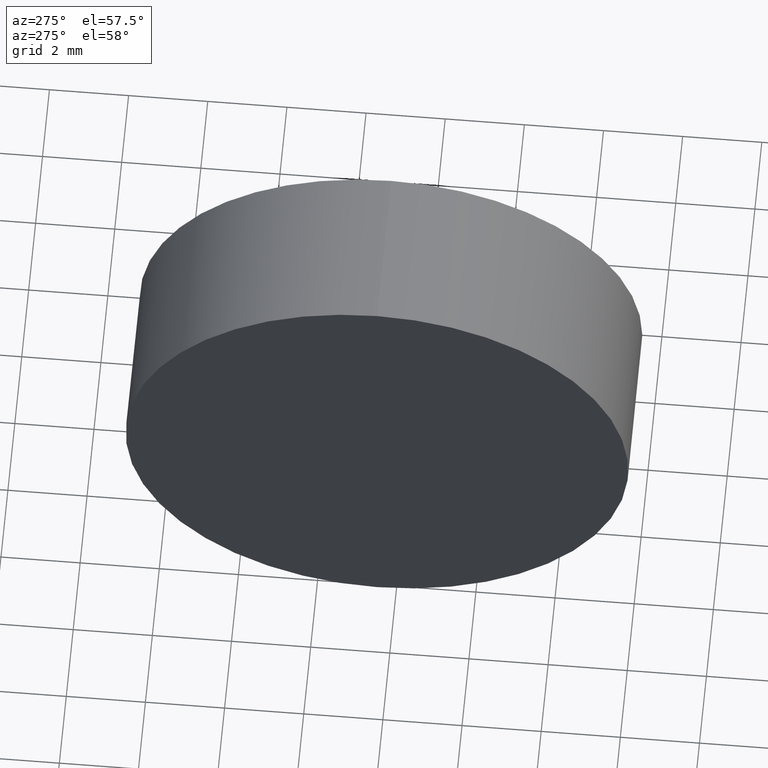
[diagram: clean part render]
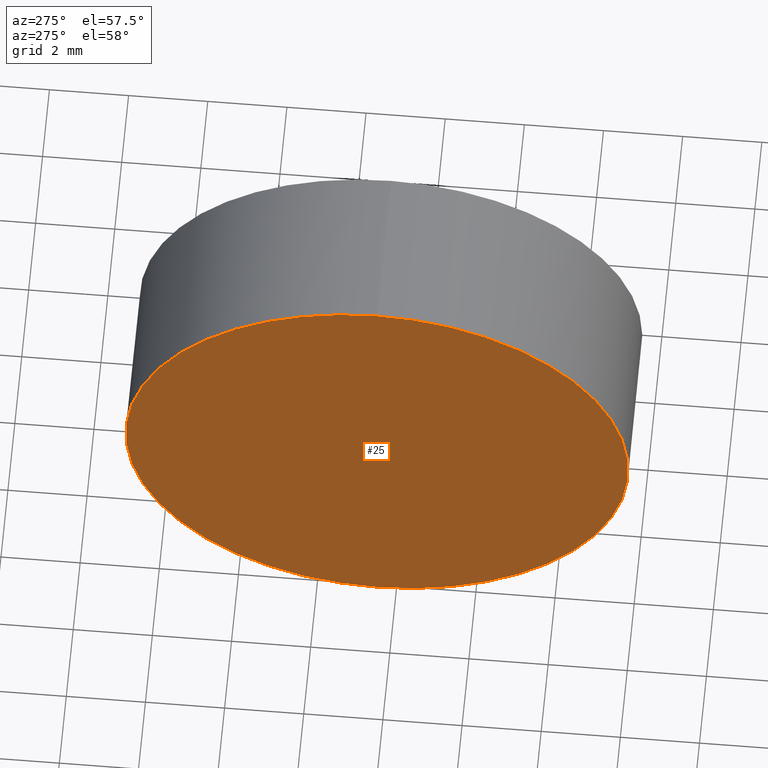
[diagram: same view with one face highlighted and labeled with its STEP entity id]
A machine part, auxiliary view. The second image highlights one B-rep face of the part: STEP entity #25.
In plain terms, the highlighted planar face has unit normal (1, 0, 0).
Its self-contained STEP definition (entity closure, byte-faithful):
#1 = ORIENTED_EDGE ( 'NONE', *, *, #40, .T. ) ;
#5 = FACE_OUTER_BOUND ( 'NONE', #62, .T. ) ;
#24 = CIRCLE ( 'NONE', #56, 6.350000000000001400 ) ;
#25 = ADVANCED_FACE ( 'NONE', ( #5 ), #107, .F. ) ;
#29 = CARTESIAN_POINT ( 'NONE',  ( 47.75370850148247100, 28.47759563463748100, 0.0000000000000000000 ) ) ;
#30 = EDGE_CURVE ( 'NONE', #134, #163, #90, .T. ) ;
#34 = CARTESIAN_POINT ( 'NONE',  ( 47.75370850148247100, 28.47759563463748100, -6.350000000000001400 ) ) ;
#40 = EDGE_CURVE ( 'NONE', #163, #134, #24, .T. ) ;
#55 = CARTESIAN_POINT ( 'NONE',  ( 47.75370850148247100, 28.47759563463748100, 0.0000000000000000000 ) ) ;
#56 = AXIS2_PLACEMENT_3D ( 'NONE', #82, #57, #98 ) ;
#57 = DIRECTION ( 'NONE',  ( -1.000000000000000000, -0.0000000000000000000, -0.0000000000000000000 ) ) ;
#62 = EDGE_LOOP ( 'NONE', ( #114, #1 ) ) ;
#73 = CARTESIAN_POINT ( 'NONE',  ( 47.75370850148247100, 28.47759563463748100, 6.350000000000001400 ) ) ;
#82 = CARTESIAN_POINT ( 'NONE',  ( 47.75370850148247100, 28.47759563463748100, 0.0000000000000000000 ) ) ;
#90 = CIRCLE ( 'NONE', #96, 6.350000000000001400 ) ;
#96 = AXIS2_PLACEMENT_3D ( 'NONE', #29, #170, #186 ) ;
#98 = DIRECTION ( 'NONE',  ( 0.0000000000000000000, 0.0000000000000000000, 1.000000000000000000 ) ) ;
#99 = DIRECTION ( 'NONE',  ( 1.000000000000000000, 0.0000000000000000000, 0.0000000000000000000 ) ) ;
#104 = AXIS2_PLACEMENT_3D ( 'NONE', #55, #99, #125 ) ;
#107 = PLANE ( 'NONE',  #104 ) ;
#114 = ORIENTED_EDGE ( 'NONE', *, *, #30, .T. ) ;
#125 = DIRECTION ( 'NONE',  ( 0.0000000000000000000, 0.0000000000000000000, -1.000000000000000000 ) ) ;
#134 = VERTEX_POINT ( 'NONE', #73 ) ;
#163 = VERTEX_POINT ( 'NONE', #34 ) ;
#170 = DIRECTION ( 'NONE',  ( -1.000000000000000000, -0.0000000000000000000, -0.0000000000000000000 ) ) ;
#186 = DIRECTION ( 'NONE',  ( 0.0000000000000000000, 0.0000000000000000000, 1.000000000000000000 ) ) ;